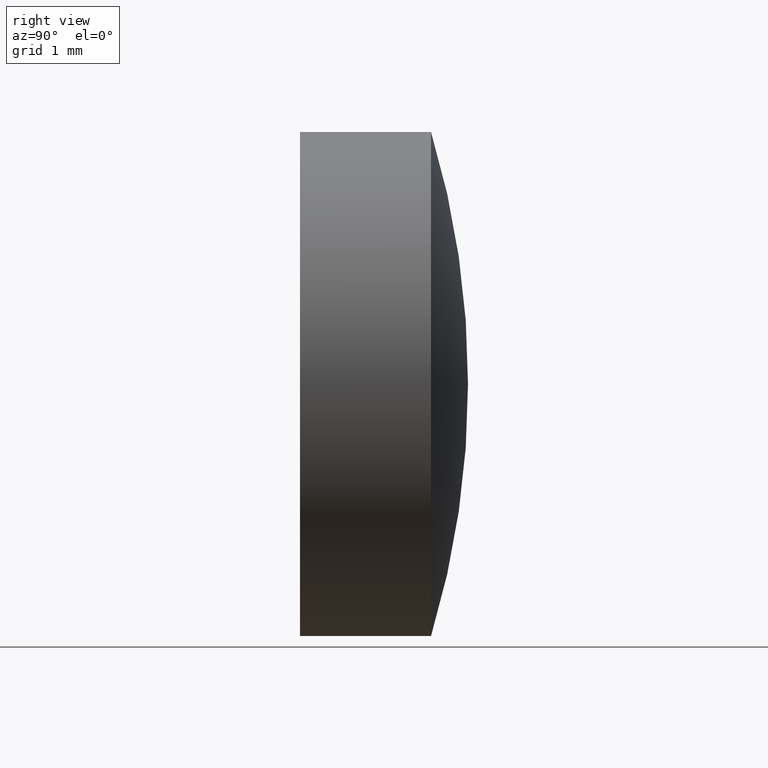
[diagram: clean part render]
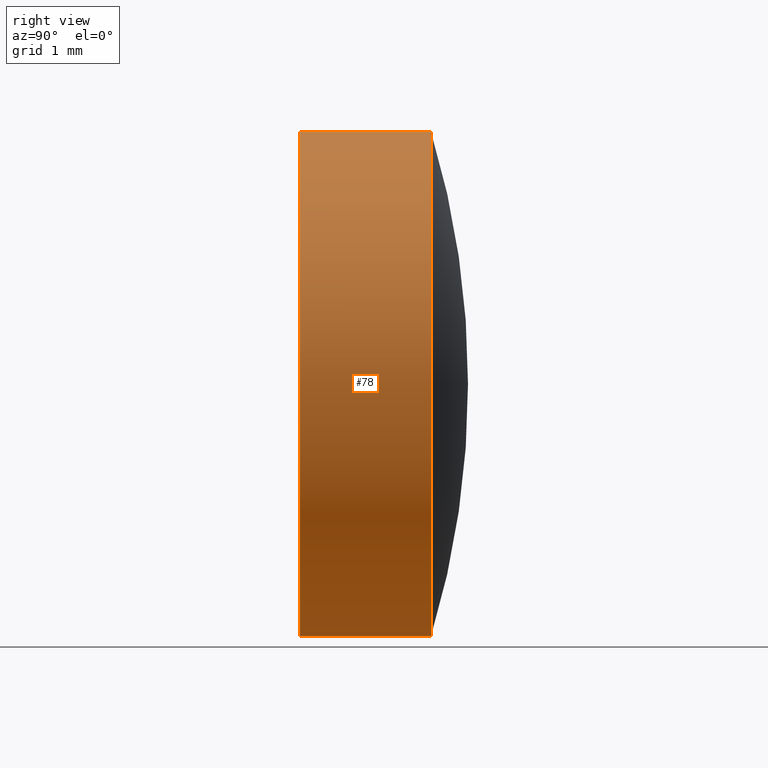
[diagram: same view with one face highlighted and labeled with its STEP entity id]
A machine part, right view. The second image highlights one B-rep face of the part: STEP entity #78.
In plain terms, the highlighted cylindrical surface (partial cylindrical patch) has radius 3 mm, axis along (-0, 1, -0).
Its self-contained STEP definition (entity closure, byte-faithful):
#7 = AXIS2_PLACEMENT_3D ( 'NONE', #103, #185, #21 ) ;
#18 = ORIENTED_EDGE ( 'NONE', *, *, #51, .F. ) ;
#21 = DIRECTION ( 'NONE',  ( 0.000000000000000000, 0.000000000000000000, 1.000000000000000000 ) ) ;
#22 = CARTESIAN_POINT ( 'NONE',  ( 0.000000000000000000, 1.559999999999999387, 2.999999999999999112 ) ) ;
#23 = AXIS2_PLACEMENT_3D ( 'NONE', #95, #176, #196 ) ;
#29 = VERTEX_POINT ( 'NONE', #190 ) ;
#37 = CARTESIAN_POINT ( 'NONE',  ( 0.000000000000000000, 1.559999999999999609, 0.000000000000000000 ) ) ;
#38 = FACE_OUTER_BOUND ( 'NONE', #144, .T. ) ;
#40 = CARTESIAN_POINT ( 'NONE',  ( 3.673940397442059868E-16, -4.336808689942017736E-16, -3.000000000000000000 ) ) ;
#51 = EDGE_CURVE ( 'NONE', #111, #86, #71, .T. ) ;
#55 = DIRECTION ( 'NONE',  ( -0.000000000000000000, 1.000000000000000000, -0.000000000000000000 ) ) ;
#57 = DIRECTION ( 'NONE',  ( 0.000000000000000000, 0.000000000000000000, 1.000000000000000000 ) ) ;
#58 = EDGE_CURVE ( 'NONE', #86, #29, #59, .T. ) ;
#59 = CIRCLE ( 'NONE', #165, 3.000000000000000000 ) ;
#71 = LINE ( 'NONE', #155, #143 ) ;
#74 = CARTESIAN_POINT ( 'NONE',  ( 3.673940397442059868E-16, 2.000000000000000000, -3.000000000000000000 ) ) ;
#78 = ADVANCED_FACE ( 'NONE', ( #38 ), #156, .T. ) ;
#82 = EDGE_CURVE ( 'NONE', #167, #29, #172, .T. ) ;
#83 = ORIENTED_EDGE ( 'NONE', *, *, #82, .T. ) ;
#85 = ORIENTED_EDGE ( 'NONE', *, *, #58, .F. ) ;
#86 = VERTEX_POINT ( 'NONE', #22 ) ;
#95 = CARTESIAN_POINT ( 'NONE',  ( 0.000000000000000000, -4.336808689942017736E-16, 0.000000000000000000 ) ) ;
#103 = CARTESIAN_POINT ( 'NONE',  ( 0.000000000000000000, 2.000000000000000000, 0.000000000000000000 ) ) ;
#105 = DIRECTION ( 'NONE',  ( -0.000000000000000000, 1.000000000000000000, -0.000000000000000000 ) ) ;
#111 = VERTEX_POINT ( 'NONE', #139 ) ;
#114 = EDGE_CURVE ( 'NONE', #111, #167, #117, .T. ) ;
#117 = CIRCLE ( 'NONE', #23, 3.000000000000000000 ) ;
#134 = ORIENTED_EDGE ( 'NONE', *, *, #114, .T. ) ;
#139 = CARTESIAN_POINT ( 'NONE',  ( 0.000000000000000000, -4.336808689942017736E-16, 3.000000000000000000 ) ) ;
#143 = VECTOR ( 'NONE', #188, 1000.000000000000000 ) ;
#144 = EDGE_LOOP ( 'NONE', ( #134, #83, #85, #18 ) ) ;
#155 = CARTESIAN_POINT ( 'NONE',  ( 0.000000000000000000, 2.000000000000000000, 3.000000000000000000 ) ) ;
#156 = CYLINDRICAL_SURFACE ( 'NONE', #7, 3.000000000000000000 ) ;
#165 = AXIS2_PLACEMENT_3D ( 'NONE', #37, #55, #57 ) ;
#167 = VERTEX_POINT ( 'NONE', #40 ) ;
#172 = LINE ( 'NONE', #74, #184 ) ;
#176 = DIRECTION ( 'NONE',  ( -0.000000000000000000, 1.000000000000000000, -0.000000000000000000 ) ) ;
#184 = VECTOR ( 'NONE', #105, 1000.000000000000000 ) ;
#185 = DIRECTION ( 'NONE',  ( -0.000000000000000000, 1.000000000000000000, -0.000000000000000000 ) ) ;
#188 = DIRECTION ( 'NONE',  ( -0.000000000000000000, 1.000000000000000000, -0.000000000000000000 ) ) ;
#190 = CARTESIAN_POINT ( 'NONE',  ( 3.673940397442058882E-16, 1.559999999999999387, -2.999999999999999112 ) ) ;
#196 = DIRECTION ( 'NONE',  ( 0.000000000000000000, 0.000000000000000000, 1.000000000000000000 ) ) ;